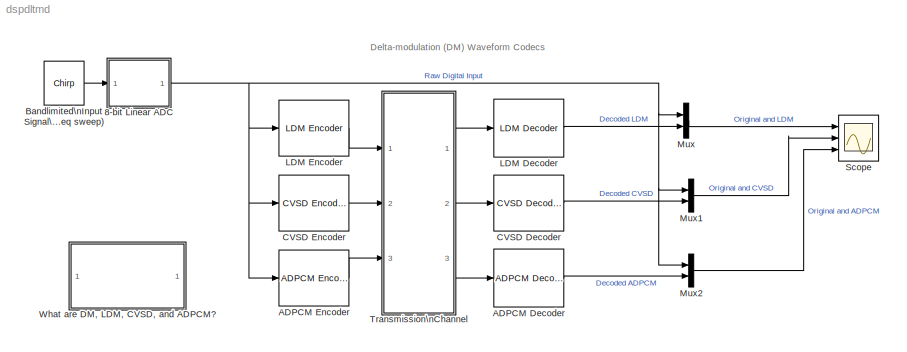
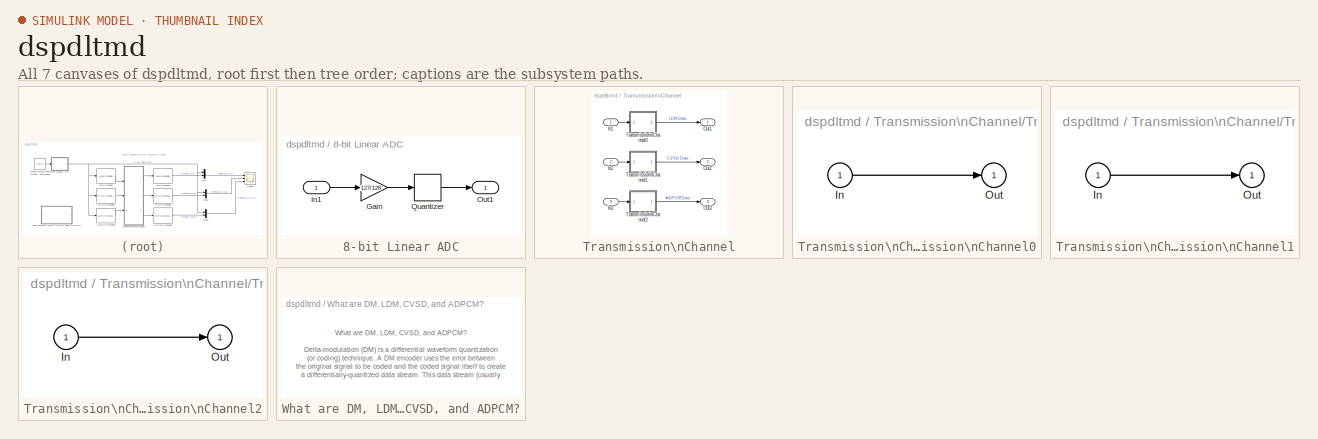
[diagram: thumbnail index - all 7 canvases of the model, root first then tree order]
MODEL dspdltmd
KIND model
CONFIG AbsTol = auto
CONFIG FixedStep = auto
CONFIG MaxStep = auto
CONFIG MinStep = auto
CONFIG RelTol = 1e-3
CONFIG Solver = FixedStepDiscrete
CONFIG SolverMode = SingleTasking
CONFIG StartTime = 0.0
CONFIG StopTime = 1
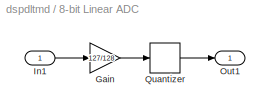
BLOCK [SubSystem] 8-bit Linear ADC
  MaskDisplay = disp('8-bit\\nLinear\\nQuantizer')
  MaskIconFrame = on
  MaskIconOpaque = on
  MaskIconRotate = none
  MaskIconUnits = autoscale
  Ports = [1, 1]
  RTWFcnNameOpts = Auto
  RTWFileNameOpts = Auto
  RTWSystemCode = Auto
  ShowPortLabels = off
  TreatAsAtomicUnit = off
BLOCK [Gain] 8-bit Linear ADC/Gain
  Gain = 127/128
  Multiplication = Element-wise(K.*u)
  SaturateOnIntegerOverflow = on
BLOCK [Inport] 8-bit Linear ADC/In1
  Interpolate = on
  LatchInput = off
  Port = 1
BLOCK [Outport] 8-bit Linear ADC/Out1
  InitialOutput = []
  OutputWhenDisabled = held
  Port = 1
BLOCK [Quantizer] 8-bit Linear ADC/Quantizer
  LinearizeAsGain = off
  QuantizationInterval = 1/128
BLOCK [Reference] ADPCM Decoder  REF=dspwvfmcdlib/ADPCM Decoder
  AdpcmIntTau = 0.99
  Ports = [1, 1]
  SourceBlock = dspwvfmcdlib/ADPCM Decoder
  SourceType = ADPCM Decoder
  StepAttn = .5
  StepGain = 2
  StepInit = 0.1
  StepMax = 0.5
  StepMin = 0.01
BLOCK [Reference] ADPCM Encoder  REF=dspwvfmcdlib/ADPCM Encoder
  EncIntTau = 0.99
  EncStepAttn = .5
  EncStepGain = 2
  EncStepInit = 0.1
  EncStepMax = 0.5
  EncStepMin = 0.01
  Ports = [1, 1]
  SourceBlock = dspwvfmcdlib/ADPCM Encoder
  SourceType = ADPCM Encoder
BLOCK [Reference] Bandlimited\nInput Signal\n(linear freq sweep)  REF=dspsrcs4/Chirp
  Ports = [0, 1]
  SourceBlock = dspsrcs4/Chirp
  SourceType = Chirp
  Ts = 1/16000
  Tsweep = 1
  datatype = Double
  f0 = 0
  f1 = 4000
  mode = Unidirectional
  phase = 0
  spf = 1
  sweep = Linear
  t1 = 1
BLOCK [Reference] CVSD Decoder  REF=dspwvfmcdlib/CVSD Decoder
  DeltaMax = 20
  DeltaMin = 0.01
  Ports = [1, 1]
  RecIntTau = 0.96
  SourceBlock = dspwvfmcdlib/CVSD Decoder
  SourceType = CVSD Decoder
  SylIntTau = 0.99
BLOCK [Reference] CVSD Encoder  REF=dspwvfmcdlib/CVSD Encoder
  EncDeltaMax = 20
  EncDeltaMin = 0.01
  EncRecIntTau = 0.96
  EncSylIntTau = 0.99
  Ports = [1, 1]
  SourceBlock = dspwvfmcdlib/CVSD Encoder
  SourceType = CVSD Encoder
BLOCK [Reference] LDM Decoder  REF=dspwvfmcdlib/LDM Decoder
  Ports = [1, 1]
  SourceBlock = dspwvfmcdlib/LDM Decoder
  SourceType = LDM Decoder
  Tau = 0.91
BLOCK [Reference] LDM Encoder  REF=dspwvfmcdlib/LDM Encoder
  EncTau = 0.91
  Ports = [1, 1]
  SourceBlock = dspwvfmcdlib/LDM Encoder
  SourceType = LDM Encoder
BLOCK [Mux] Mux
  DisplayOption = bar
  Inputs = 2
  Ports = [2, 1]
BLOCK [Mux] Mux1
  DisplayOption = bar
  Inputs = 2
  Ports = [2, 1]
BLOCK [Mux] Mux2
  DisplayOption = bar
  Inputs = 2
  Ports = [2, 1]
BLOCK [Scope] Scope
  DataFormat = StructureWithTime
  Decimation = 1
  Floating = off
  Grid = on
  LimitDataPoints = on
  MaxDataPoints = 500000
  NumInputPorts = 3
  Ports = [3]
  SampleInput = off
  SampleTime = 0
  SaveName = ScopeData
  SaveToWorkspace = off
  TickLabels = on
  TimeRange = 1
  YMax = 1~2~2
  YMin = -1~-2~-2
  ZoomMode = xonly
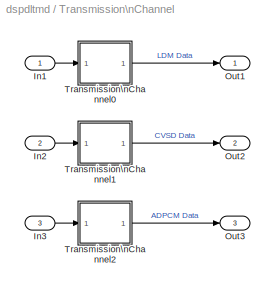
BLOCK [SubSystem] Transmission\nChannel
  Ports = [3, 3]
  RTWFcnNameOpts = Auto
  RTWFileNameOpts = Auto
  RTWSystemCode = Auto
  ShowPortLabels = on
  TreatAsAtomicUnit = off
BLOCK [Inport] Transmission\nChannel/In1
  Interpolate = on
  LatchInput = off
  Port = 1
BLOCK [Inport] Transmission\nChannel/In2
  Interpolate = on
  LatchInput = off
  Port = 2
BLOCK [Inport] Transmission\nChannel/In3
  Interpolate = on
  LatchInput = off
  Port = 3
BLOCK [Outport] Transmission\nChannel/Out1
  InitialOutput = []
  OutputWhenDisabled = held
  Port = 1
BLOCK [Outport] Transmission\nChannel/Out2
  InitialOutput = []
  OutputWhenDisabled = held
  Port = 2
BLOCK [Outport] Transmission\nChannel/Out3
  InitialOutput = []
  OutputWhenDisabled = held
  Port = 3
BLOCK [SubSystem] Transmission\nChannel/Transmission\nChannel0
  Ports = [1, 1]
  RTWFcnNameOpts = Auto
  RTWFileNameOpts = Auto
  RTWSystemCode = Auto
  ShowPortLabels = on
  TreatAsAtomicUnit = off
BLOCK [Inport] Transmission\nChannel/Transmission\nChannel0/In
  Interpolate = on
  LatchInput = off
  Port = 1
BLOCK [Outport] Transmission\nChannel/Transmission\nChannel0/Out
  InitialOutput = 0
  OutputWhenDisabled = held
  Port = 1
BLOCK [SubSystem] Transmission\nChannel/Transmission\nChannel1
  Ports = [1, 1]
  RTWFcnNameOpts = Auto
  RTWFileNameOpts = Auto
  RTWSystemCode = Auto
  ShowPortLabels = on
  TreatAsAtomicUnit = off
BLOCK [Inport] Transmission\nChannel/Transmission\nChannel1/In
  Interpolate = on
  LatchInput = off
  Port = 1
BLOCK [Outport] Transmission\nChannel/Transmission\nChannel1/Out
  InitialOutput = 0
  OutputWhenDisabled = held
  Port = 1
BLOCK [SubSystem] Transmission\nChannel/Transmission\nChannel2
  Ports = [1, 1]
  RTWFcnNameOpts = Auto
  RTWFileNameOpts = Auto
  RTWSystemCode = Auto
  ShowPortLabels = on
  TreatAsAtomicUnit = off
BLOCK [Inport] Transmission\nChannel/Transmission\nChannel2/In
  Interpolate = on
  LatchInput = off
  Port = 1
BLOCK [Outport] Transmission\nChannel/Transmission\nChannel2/Out
  InitialOutput = 0
  OutputWhenDisabled = held
  Port = 1
BLOCK [SubSystem] What are DM, LDM, CVSD, and ADPCM?
  MaskDisplay = disp('What are DM,\\nLDM, CVSD,\\nand ADPCM?')
  MaskIconFrame = on
  MaskIconOpaque = on
  MaskIconRotate = none
  MaskIconUnits = autoscale
  MaskType = Delta-modulation Demo Info
  Ports = []
  RTWFcnNameOpts = Auto
  RTWFileNameOpts = Auto
  RTWSystemCode = Auto
  ShowPortLabels = on
  TreatAsAtomicUnit = off
ANNOTATION (root): Delta-modulation (DM) Waveform Codecs
ANNOTATION What are DM, LDM, CVSD, and ADPCM?: What are DM, LDM, CVSD, and ADPCM?\n\nDelta-modulation (DM) is a differential waveform quantization\n(or coding) technique. A DM encoder uses the error between\nthe original signal to be coded and the coded signal itself to create\na differentially-quantized data stream. This data stream (usually\nthe computed error signal) is a lower-bit-rate signal that can be\ndecoded by a matched decoder on th...<+2586ch>
LINE 8-bit Linear ADC/Gain:1 -> 8-bit Linear ADC/Quantizer:1
LINE 8-bit Linear ADC/In1:1 -> 8-bit Linear ADC/Gain:1
LINE 8-bit Linear ADC/Quantizer:1 -> 8-bit Linear ADC/Out1:1
NET 8-bit Linear ADC:1 -> ADPCM Encoder:1, CVSD Encoder:1, LDM Encoder:1, Mux1:1, Mux2:1, Mux:1
LINE ADPCM Decoder:1 -> Mux2:2
LINE ADPCM Encoder:1 -> Transmission\nChannel:3
LINE Bandlimited\nInput Signal\n(linear freq sweep):1 -> 8-bit Linear ADC:1
LINE CVSD Decoder:1 -> Mux1:2
LINE CVSD Encoder:1 -> Transmission\nChannel:2
LINE LDM Decoder:1 -> Mux:2
LINE LDM Encoder:1 -> Transmission\nChannel:1
LINE Mux1:1 -> Scope:2
LINE Mux2:1 -> Scope:3
LINE Mux:1 -> Scope:1
LINE Transmission\nChannel/In1:1 -> Transmission\nChannel/Transmission\nChannel0:1
LINE Transmission\nChannel/In2:1 -> Transmission\nChannel/Transmission\nChannel1:1
LINE Transmission\nChannel/In3:1 -> Transmission\nChannel/Transmission\nChannel2:1
LINE Transmission\nChannel/Transmission\nChannel0/In:1 -> Transmission\nChannel/Transmission\nChannel0/Out:1
LINE Transmission\nChannel/Transmission\nChannel0:1 -> Transmission\nChannel/Out1:1
LINE Transmission\nChannel/Transmission\nChannel1/In:1 -> Transmission\nChannel/Transmission\nChannel1/Out:1
LINE Transmission\nChannel/Transmission\nChannel1:1 -> Transmission\nChannel/Out2:1
LINE Transmission\nChannel/Transmission\nChannel2/In:1 -> Transmission\nChannel/Transmission\nChannel2/Out:1
LINE Transmission\nChannel/Transmission\nChannel2:1 -> Transmission\nChannel/Out3:1
LINE Transmission\nChannel:1 -> LDM Decoder:1
LINE Transmission\nChannel:2 -> CVSD Decoder:1
LINE Transmission\nChannel:3 -> ADPCM Decoder:1
note: NET lines group one-source signal fan-out (src -> all destinations, sorted); 1:1 wires keep LINE
